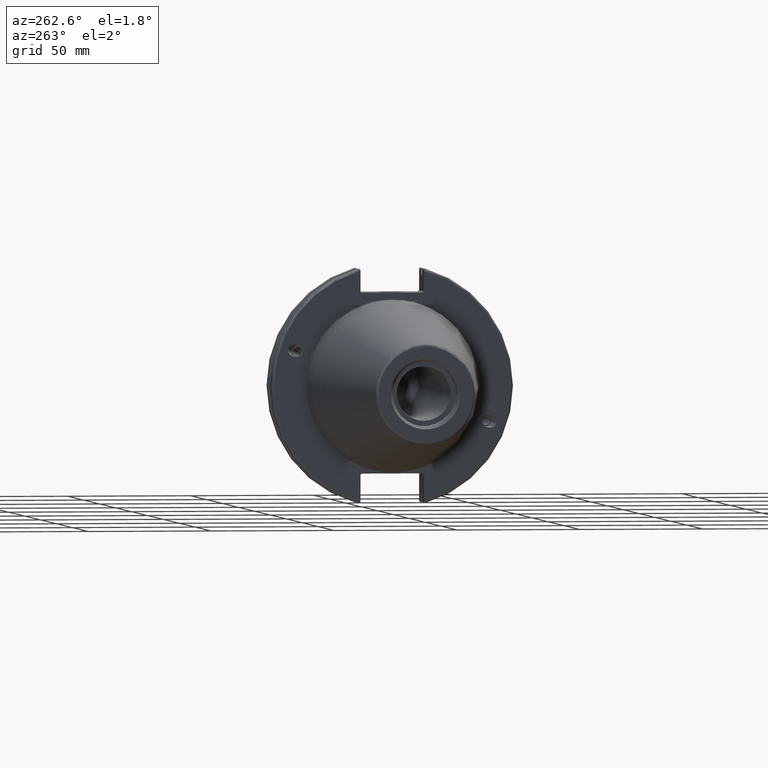
[diagram: clean part render]
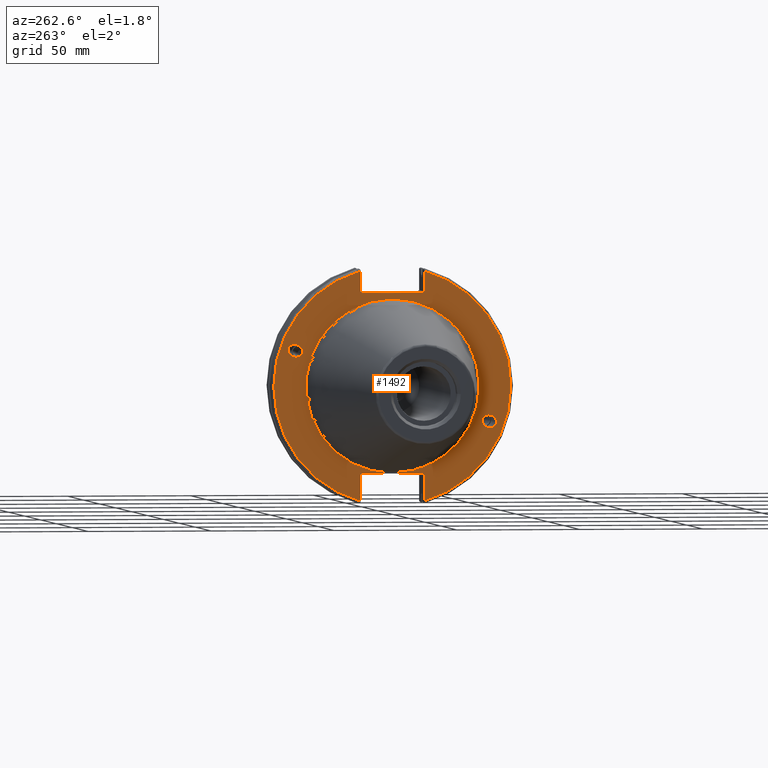
[diagram: same view with one face highlighted and labeled with its STEP entity id]
A machine part, auxiliary view. The second image highlights one B-rep face of the part: STEP entity #1492.
In plain terms, the highlighted planar face has unit normal (-1, 0, 0).
Its self-contained STEP definition (entity closure, byte-faithful):
#31=ELLIPSE('',#1614,3.05193647190364,2.5);
#32=ELLIPSE('',#1648,3.05193647190364,2.5);
#129=LINE('',#2778,#221);
#130=LINE('',#2780,#222);
#131=LINE('',#2782,#223);
#132=LINE('',#2784,#224);
#133=LINE('',#2786,#225);
#134=LINE('',#2790,#226);
#135=LINE('',#2792,#227);
#136=LINE('',#2794,#228);
#137=LINE('',#2796,#229);
#138=LINE('',#2797,#230);
#221=VECTOR('',#1963,10.);
#222=VECTOR('',#1964,10.);
#223=VECTOR('',#1965,10.);
#224=VECTOR('',#1966,10.);
#225=VECTOR('',#1967,10.);
#226=VECTOR('',#1970,10.);
#227=VECTOR('',#1971,10.);
#228=VECTOR('',#1972,10.);
#229=VECTOR('',#1973,10.);
#230=VECTOR('',#1974,10.);
#309=FACE_BOUND('',#494,.T.);
#310=FACE_BOUND('',#495,.T.);
#311=FACE_BOUND('',#496,.T.);
#327=PLANE('',#1654);
#393=FACE_OUTER_BOUND('',#493,.T.);
#493=EDGE_LOOP('',(#1203,#1204,#1205,#1206,#1207,#1208,#1209,#1210,#1211,
#1212,#1213,#1214));
#494=EDGE_LOOP('',(#1215));
#495=EDGE_LOOP('',(#1216));
#496=EDGE_LOOP('',(#1217));
#593=CIRCLE('',#1652,35.125);
#595=CIRCLE('',#1655,48.2125);
#596=CIRCLE('',#1656,48.2125);
#675=VERTEX_POINT('',#2503);
#713=VERTEX_POINT('',#2762);
#716=VERTEX_POINT('',#2769);
#717=VERTEX_POINT('',#2774);
#718=VERTEX_POINT('',#2775);
#719=VERTEX_POINT('',#2777);
#720=VERTEX_POINT('',#2779);
#721=VERTEX_POINT('',#2781);
#722=VERTEX_POINT('',#2783);
#723=VERTEX_POINT('',#2785);
#724=VERTEX_POINT('',#2787);
#725=VERTEX_POINT('',#2789);
#726=VERTEX_POINT('',#2791);
#727=VERTEX_POINT('',#2793);
#728=VERTEX_POINT('',#2795);
#842=EDGE_CURVE('',#675,#675,#31,.T.);
#893=EDGE_CURVE('',#713,#713,#32,.T.);
#896=EDGE_CURVE('',#716,#716,#593,.T.);
#898=EDGE_CURVE('',#717,#718,#595,.T.);
#899=EDGE_CURVE('',#717,#719,#129,.T.);
#900=EDGE_CURVE('',#720,#719,#130,.T.);
#901=EDGE_CURVE('',#720,#721,#131,.T.);
#902=EDGE_CURVE('',#722,#721,#132,.T.);
#903=EDGE_CURVE('',#722,#723,#133,.T.);
#904=EDGE_CURVE('',#724,#723,#596,.T.);
#905=EDGE_CURVE('',#724,#725,#134,.T.);
#906=EDGE_CURVE('',#726,#725,#135,.T.);
#907=EDGE_CURVE('',#726,#727,#136,.T.);
#908=EDGE_CURVE('',#728,#727,#137,.T.);
#909=EDGE_CURVE('',#728,#718,#138,.T.);
#1203=ORIENTED_EDGE('',*,*,#898,.F.);
#1204=ORIENTED_EDGE('',*,*,#899,.T.);
#1205=ORIENTED_EDGE('',*,*,#900,.F.);
#1206=ORIENTED_EDGE('',*,*,#901,.T.);
#1207=ORIENTED_EDGE('',*,*,#902,.F.);
#1208=ORIENTED_EDGE('',*,*,#903,.T.);
#1209=ORIENTED_EDGE('',*,*,#904,.F.);
#1210=ORIENTED_EDGE('',*,*,#905,.T.);
#1211=ORIENTED_EDGE('',*,*,#906,.F.);
#1212=ORIENTED_EDGE('',*,*,#907,.T.);
#1213=ORIENTED_EDGE('',*,*,#908,.F.);
#1214=ORIENTED_EDGE('',*,*,#909,.T.);
#1215=ORIENTED_EDGE('',*,*,#842,.T.);
#1216=ORIENTED_EDGE('',*,*,#893,.T.);
#1217=ORIENTED_EDGE('',*,*,#896,.F.);
#1492=ADVANCED_FACE('',(#393,#309,#310,#311),#327,.T.);
#1614=AXIS2_PLACEMENT_3D('',#2505,#1863,#1864);
#1648=AXIS2_PLACEMENT_3D('',#2764,#1947,#1948);
#1652=AXIS2_PLACEMENT_3D('',#2771,#1955,#1956);
#1654=AXIS2_PLACEMENT_3D('',#2773,#1959,#1960);
#1655=AXIS2_PLACEMENT_3D('',#2776,#1961,#1962);
#1656=AXIS2_PLACEMENT_3D('',#2788,#1968,#1969);
#1863=DIRECTION('center_axis',(1.,0.,0.));
#1864=DIRECTION('ref_axis',(0.,-0.939692620785908,-0.342020143325668));
#1947=DIRECTION('center_axis',(1.,0.,0.));
#1948=DIRECTION('ref_axis',(0.,0.939692620785908,0.342020143325669));
#1955=DIRECTION('center_axis',(-1.,0.,0.));
#1956=DIRECTION('ref_axis',(0.,-1.,1.83697019872103E-16));
#1959=DIRECTION('center_axis',(-1.,0.,0.));
#1960=DIRECTION('ref_axis',(0.,0.,1.));
#1961=DIRECTION('center_axis',(1.,0.,0.));
#1962=DIRECTION('ref_axis',(0.,-1.,1.60812264967664E-16));
#1963=DIRECTION('',(0.,0.,-1.));
#1964=DIRECTION('',(0.,-0.707106781186549,0.707106781186546));
#1965=DIRECTION('',(0.,1.,0.));
#1966=DIRECTION('',(0.,-0.707106781186549,-0.707106781186546));
#1967=DIRECTION('',(0.,0.,1.));
#1968=DIRECTION('center_axis',(1.,0.,0.));
#1969=DIRECTION('ref_axis',(0.,1.,-6.12323399573677E-17));
#1970=DIRECTION('',(0.,0.,1.));
#1971=DIRECTION('',(0.,0.707106781186549,-0.707106781186546));
#1972=DIRECTION('',(0.,-1.,0.));
#1973=DIRECTION('',(0.,0.707106781186549,0.707106781186546));
#1974=DIRECTION('',(0.,0.,-1.));
#2503=CARTESIAN_POINT('',(3.175,-36.5992078912529,-13.3210222701368));
#2505=CARTESIAN_POINT('Origin',(3.175,-39.4670900730082,-14.3648460196781));
#2762=CARTESIAN_POINT('',(3.175,36.5992078912529,13.3210222701368));
#2764=CARTESIAN_POINT('Origin',(3.175,39.4670900730082,14.3648460196781));
#2769=CARTESIAN_POINT('',(3.175,-4.30157188200508E-15,35.125));
#2771=CARTESIAN_POINT('Origin',(3.175,0.,0.));
#2773=CARTESIAN_POINT('Origin',(3.175,49.2125,0.));
#2774=CARTESIAN_POINT('',(3.175,-12.95,46.4407434937254));
#2775=CARTESIAN_POINT('',(3.175,-12.95,-46.4407434937254));
#2776=CARTESIAN_POINT('Origin',(3.175,0.,0.));
#2777=CARTESIAN_POINT('',(3.175,-12.95,38.219));
#2778=CARTESIAN_POINT('',(3.175,-12.95,18.8595));
#2779=CARTESIAN_POINT('',(3.175,-12.45,37.719));
#2780=CARTESIAN_POINT('',(3.175,12.2703750000001,12.998625));
#2781=CARTESIAN_POINT('',(3.175,12.45,37.719));
#2782=CARTESIAN_POINT('',(3.175,24.60625,37.719));
#2783=CARTESIAN_POINT('',(3.175,12.95,38.219));
#2784=CARTESIAN_POINT('',(3.175,12.335875,37.604875));
#2785=CARTESIAN_POINT('',(3.175,12.95,46.4407434937254));
#2786=CARTESIAN_POINT('',(3.175,12.95,18.8595));
#2787=CARTESIAN_POINT('',(3.175,12.95,-46.4407434937254));
#2788=CARTESIAN_POINT('Origin',(3.175,0.,0.));
#2789=CARTESIAN_POINT('',(3.175,12.95,-35.806));
#2790=CARTESIAN_POINT('',(3.175,12.95,-17.653));
#2791=CARTESIAN_POINT('',(3.175,12.45,-35.306));
#2792=CARTESIAN_POINT('',(3.175,12.939125,-35.795125));
#2793=CARTESIAN_POINT('',(3.175,-12.45,-35.306));
#2794=CARTESIAN_POINT('',(3.175,24.60625,-35.306));
#2795=CARTESIAN_POINT('',(3.175,-12.95,-35.806));
#2796=CARTESIAN_POINT('',(3.175,11.6671250000001,-11.188875));
#2797=CARTESIAN_POINT('',(3.175,-12.95,-17.653));